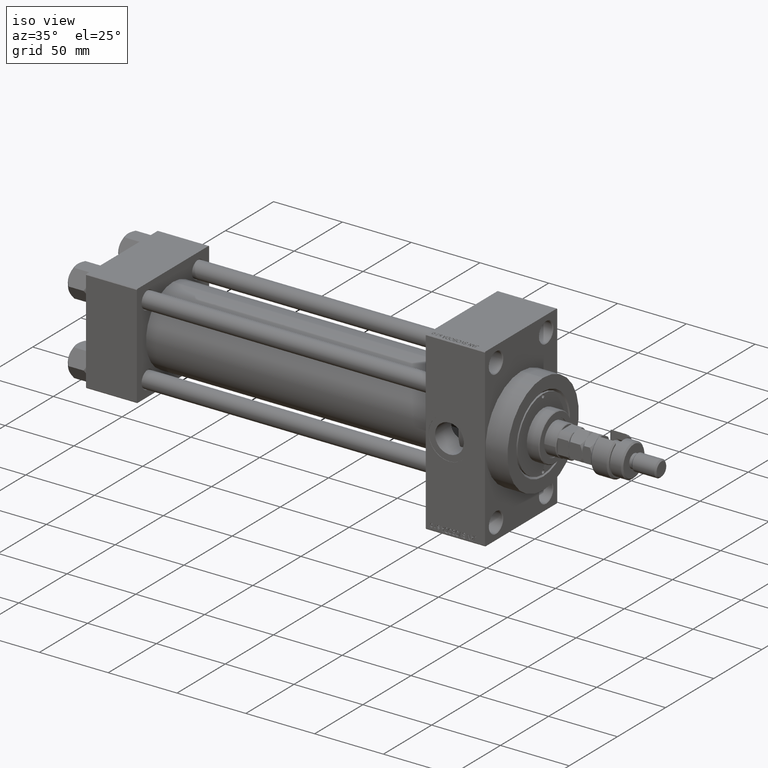
[diagram: clean part render]
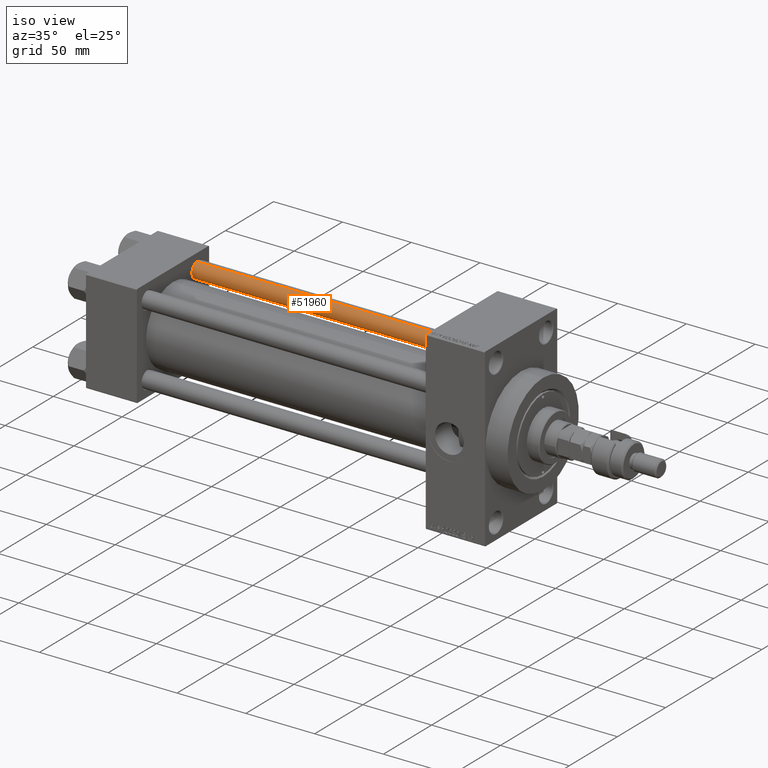
[diagram: same view with one face highlighted and labeled with its STEP entity id]
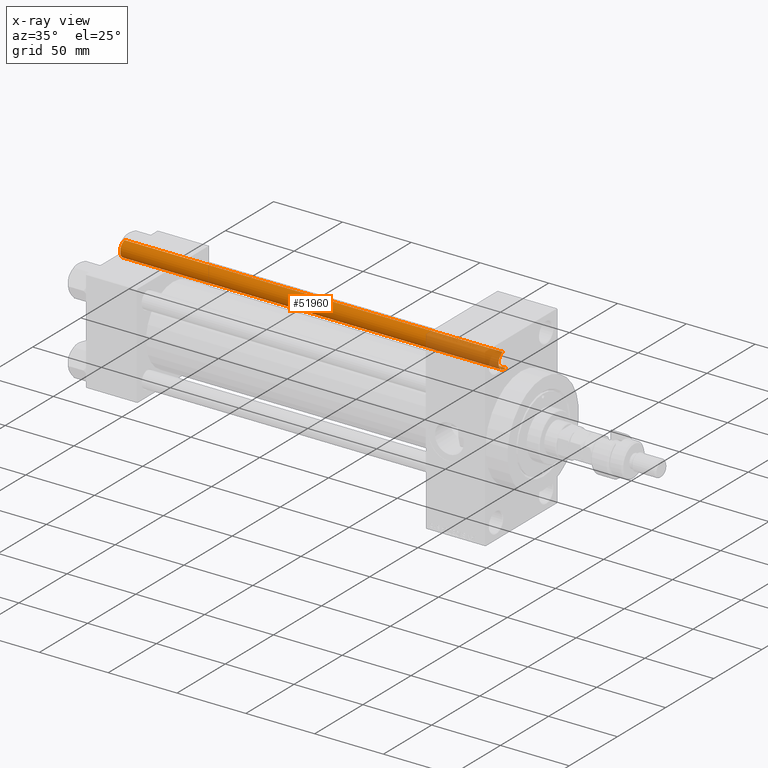
[diagram: x-ray of the same camera — body ghosted, the highlighted face saturated]
A machine part, iso view. The second image highlights one B-rep face of the part: STEP entity #51960.
The next image is the same camera in x-ray: the body ghosted, the highlighted face saturated — about 19% of this face is hidden behind the body in this view.
In plain terms, the highlighted cylindrical surface (edge-blend (fillet) strip) has radius 6 mm, axis along (-1, -0, 0).
Its self-contained STEP definition (entity closure, byte-faithful):
#128 = CIRCLE ( 'NONE', #4361, 6.000000000000000888 ) ;
#152 = CARTESIAN_POINT ( 'NONE',  ( -6.000000000000000888, 0.000000000000000000, 0.5000000000000559552 ) ) ;
#379 = ORIENTED_EDGE ( 'NONE', *, *, #37748, .T. ) ;
#1058 = EDGE_CURVE ( 'NONE', #32913, #28058, #28238, .T. ) ;
#3256 = DIRECTION ( 'NONE',  ( 1.000000000000000000, 0.000000000000000000, 0.000000000000000000 ) ) ;
#4361 = AXIS2_PLACEMENT_3D ( 'NONE', #11466, #31307, #3256 ) ;
#5478 = VECTOR ( 'NONE', #31673, 1000.000000000000000 ) ;
#6139 = VECTOR ( 'NONE', #41117, 1000.000000000000000 ) ;
#6936 = DIRECTION ( 'NONE',  ( -1.000000000000000000, 0.000000000000000000, 0.000000000000000000 ) ) ;
#7623 = CARTESIAN_POINT ( 'NONE',  ( 0.000000000000000000, 0.000000000000000000, 0.5000000000000559552 ) ) ;
#10616 = EDGE_LOOP ( 'NONE', ( #14497, #51574, #379, #48798 ) ) ;
#11466 = CARTESIAN_POINT ( 'NONE',  ( 0.000000000000000000, 0.000000000000000000, 275.5000000000000568 ) ) ;
#11565 = LINE ( 'NONE', #48344, #5478 ) ;
#14497 = ORIENTED_EDGE ( 'NONE', *, *, #46402, .F. ) ;
#14607 = DIRECTION ( 'NONE',  ( -0.000000000000000000, -0.000000000000000000, -1.000000000000000000 ) ) ;
#15824 = DIRECTION ( 'NONE',  ( -0.000000000000000000, -0.000000000000000000, 1.000000000000000000 ) ) ;
#20310 = DIRECTION ( 'NONE',  ( 1.000000000000000000, 0.000000000000000000, 0.000000000000000000 ) ) ;
#21924 = CARTESIAN_POINT ( 'NONE',  ( -6.000000000000000888, 0.000000000000000000, 275.5000000000000568 ) ) ;
#22552 = CARTESIAN_POINT ( 'NONE',  ( 0.000000000000000000, 0.000000000000000000, 276.0000000000000000 ) ) ;
#26776 = CYLINDRICAL_SURFACE ( 'NONE', #47607, 6.000000000000000888 ) ;
#28058 = VERTEX_POINT ( 'NONE', #36687 ) ;
#28238 = CIRCLE ( 'NONE', #45965, 6.000000000000000888 ) ;
#31307 = DIRECTION ( 'NONE',  ( 0.000000000000000000, 0.000000000000000000, -1.000000000000000000 ) ) ;
#31673 = DIRECTION ( 'NONE',  ( -0.000000000000000000, -0.000000000000000000, -1.000000000000000000 ) ) ;
#32913 = VERTEX_POINT ( 'NONE', #152 ) ;
#35164 = VERTEX_POINT ( 'NONE', #21924 ) ;
#35714 = CARTESIAN_POINT ( 'NONE',  ( 6.000000000000000888, 7.347880794884120722E-16, 275.5000000000000568 ) ) ;
#35952 = EDGE_CURVE ( 'NONE', #46205, #35164, #128, .T. ) ;
#36687 = CARTESIAN_POINT ( 'NONE',  ( 6.000000000000000888, 7.347880794884120722E-16, 0.5000000000000559552 ) ) ;
#36882 = CARTESIAN_POINT ( 'NONE',  ( -6.000000000000000888, 0.000000000000000000, 276.0000000000000000 ) ) ;
#37142 = LINE ( 'NONE', #36882, #6139 ) ;
#37748 = EDGE_CURVE ( 'NONE', #35164, #32913, #37142, .T. ) ;
#41117 = DIRECTION ( 'NONE',  ( -0.000000000000000000, -0.000000000000000000, -1.000000000000000000 ) ) ;
#43198 = FACE_OUTER_BOUND ( 'NONE', #10616, .T. ) ;
#45965 = AXIS2_PLACEMENT_3D ( 'NONE', #7623, #15824, #20310 ) ;
#46205 = VERTEX_POINT ( 'NONE', #35714 ) ;
#46402 = EDGE_CURVE ( 'NONE', #46205, #28058, #11565, .T. ) ;
#47607 = AXIS2_PLACEMENT_3D ( 'NONE', #22552, #14607, #6936 ) ;
#48344 = CARTESIAN_POINT ( 'NONE',  ( 6.000000000000000888, 7.347880794884120722E-16, 276.0000000000000000 ) ) ;
#48798 = ORIENTED_EDGE ( 'NONE', *, *, #1058, .T. ) ;
#51574 = ORIENTED_EDGE ( 'NONE', *, *, #35952, .T. ) ;
#51960 = ADVANCED_FACE ( 'NONE', ( #43198 ), #26776, .T. ) ;